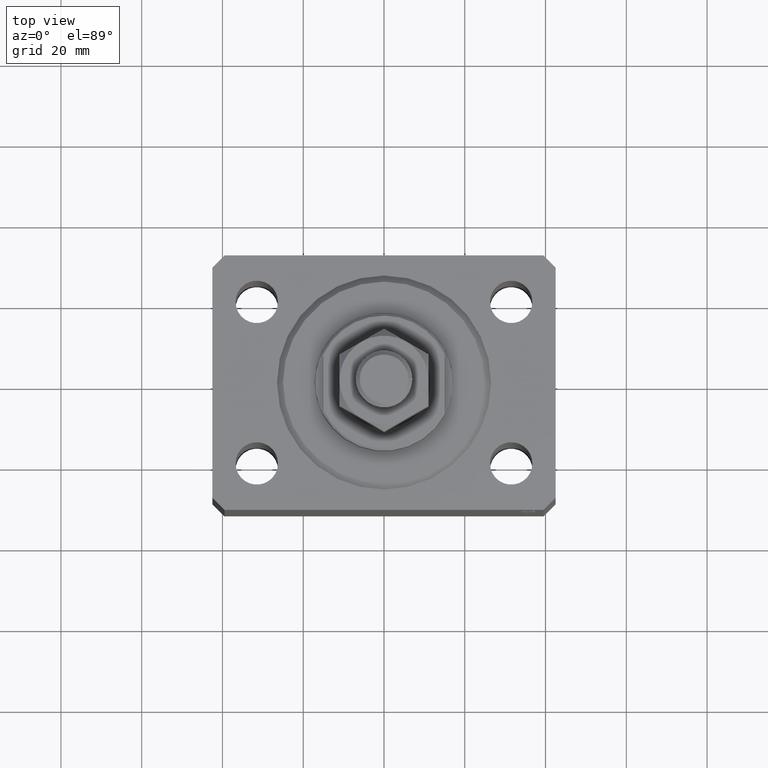
[diagram: clean part render]
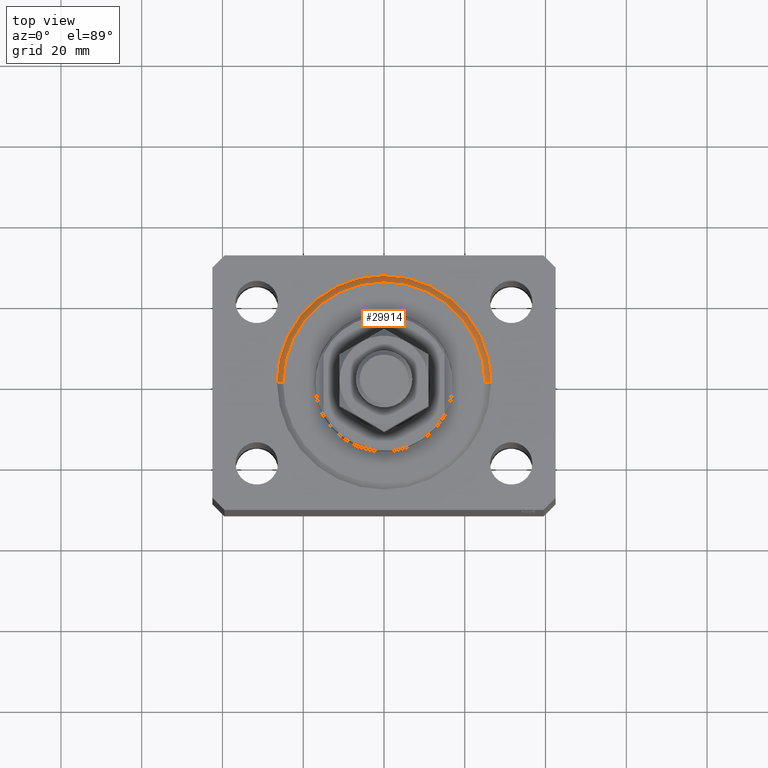
[diagram: same view with one face highlighted and labeled with its STEP entity id]
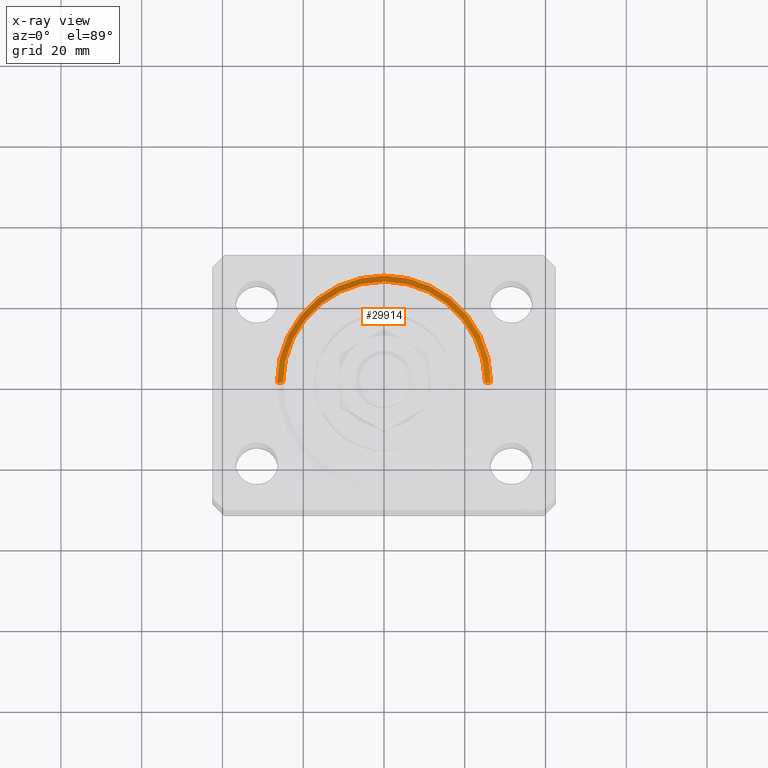
[diagram: x-ray of the same camera — body ghosted, the highlighted face saturated]
A machine part, top view. The second image highlights one B-rep face of the part: STEP entity #29914.
The next image is the same camera in x-ray: the body ghosted, the highlighted face saturated — about 0% of this face is hidden behind the body in this view.
In plain terms, the highlighted conical surface has half-angle 45 deg.
Its self-contained STEP definition (entity closure, byte-faithful):
#98 = CARTESIAN_POINT ( 'NONE',  ( 24.99999999999998224, 0.000000000000000000, 0.000000000000000000 ) ) ;
#1391 = ORIENTED_EDGE ( 'NONE', *, *, #11474, .F. ) ;
#1584 = VECTOR ( 'NONE', #10354, 1000.000000000000000 ) ;
#2444 = CARTESIAN_POINT ( 'NONE',  ( -24.99999999999998224, 3.153465507804433615E-15, 0.000000000000000000 ) ) ;
#2450 = CARTESIAN_POINT ( 'NONE',  ( 0.000000000000000000, 0.000000000000000000, 1.500000000000018652 ) ) ;
#8126 = CARTESIAN_POINT ( 'NONE',  ( 26.50000000000000355, 0.000000000000000000, 1.500000000000018652 ) ) ;
#9859 = AXIS2_PLACEMENT_3D ( 'NONE', #19764, #20219, #34412 ) ;
#10354 = DIRECTION ( 'NONE',  ( -0.7071067811865483499, 8.659560562354942719E-17, 0.7071067811865466846 ) ) ;
#10463 = CARTESIAN_POINT ( 'NONE',  ( 0.000000000000000000, 0.000000000000000000, 1.500000000000018652 ) ) ;
#11474 = EDGE_CURVE ( 'NONE', #15725, #14690, #25819, .T. ) ;
#11593 = CARTESIAN_POINT ( 'NONE',  ( 26.50000000000000355, 3.245314017740486554E-15, 1.500000000000018652 ) ) ;
#12784 = VECTOR ( 'NONE', #22348, 1000.000000000000000 ) ;
#12939 = EDGE_CURVE ( 'NONE', #24614, #15725, #21022, .T. ) ;
#14690 = VERTEX_POINT ( 'NONE', #11593 ) ;
#15725 = VERTEX_POINT ( 'NONE', #98 ) ;
#16670 = DIRECTION ( 'NONE',  ( -0.000000000000000000, -0.000000000000000000, 1.000000000000000000 ) ) ;
#16945 = CIRCLE ( 'NONE', #31065, 26.50000000000000355 ) ;
#17578 = CARTESIAN_POINT ( 'NONE',  ( -26.50000000000000355, 3.245314017740486554E-15, 1.500000000000018652 ) ) ;
#18613 = CONICAL_SURFACE ( 'NONE', #37176, 26.50000000000000355, 0.7853981633974495002 ) ;
#19764 = CARTESIAN_POINT ( 'NONE',  ( 0.000000000000000000, 0.000000000000000000, 0.000000000000000000 ) ) ;
#20219 = DIRECTION ( 'NONE',  ( -0.000000000000000000, -0.000000000000000000, -1.000000000000000000 ) ) ;
#21022 = CIRCLE ( 'NONE', #9859, 24.99999999999998224 ) ;
#22348 = DIRECTION ( 'NONE',  ( 0.7071067811865483499, 0.000000000000000000, 0.7071067811865466846 ) ) ;
#24182 = EDGE_CURVE ( 'NONE', #14690, #42856, #16945, .T. ) ;
#24614 = VERTEX_POINT ( 'NONE', #2444 ) ;
#24658 = DIRECTION ( 'NONE',  ( -0.000000000000000000, -0.000000000000000000, 1.000000000000000000 ) ) ;
#25819 = LINE ( 'NONE', #8126, #12784 ) ;
#27242 = EDGE_LOOP ( 'NONE', ( #43030, #29599, #44184, #1391 ) ) ;
#29599 = ORIENTED_EDGE ( 'NONE', *, *, #33242, .T. ) ;
#29914 = ADVANCED_FACE ( 'NONE', ( #34355 ), #18613, .T. ) ;
#30859 = DIRECTION ( 'NONE',  ( 1.000000000000000000, 0.000000000000000000, 0.000000000000000000 ) ) ;
#31065 = AXIS2_PLACEMENT_3D ( 'NONE', #10463, #24658, #40251 ) ;
#32239 = CARTESIAN_POINT ( 'NONE',  ( -26.50000000000000355, 0.000000000000000000, 1.500000000000018652 ) ) ;
#33242 = EDGE_CURVE ( 'NONE', #24614, #42856, #35031, .T. ) ;
#34355 = FACE_OUTER_BOUND ( 'NONE', #27242, .T. ) ;
#34412 = DIRECTION ( 'NONE',  ( 1.000000000000000000, 0.000000000000000000, 0.000000000000000000 ) ) ;
#35031 = LINE ( 'NONE', #17578, #1584 ) ;
#37176 = AXIS2_PLACEMENT_3D ( 'NONE', #2450, #16670, #30859 ) ;
#40251 = DIRECTION ( 'NONE',  ( 1.000000000000000000, 0.000000000000000000, 0.000000000000000000 ) ) ;
#42856 = VERTEX_POINT ( 'NONE', #32239 ) ;
#43030 = ORIENTED_EDGE ( 'NONE', *, *, #12939, .F. ) ;
#44184 = ORIENTED_EDGE ( 'NONE', *, *, #24182, .F. ) ;